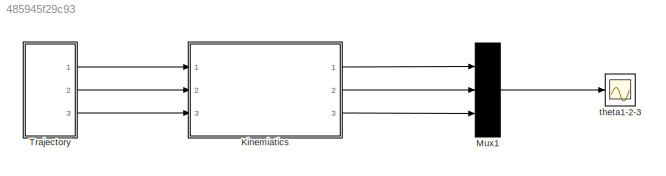
MODEL slx_485945f29c93
KIND model
CONFIG AbsTol = auto
CONFIG EnableMultiTasking = off
CONFIG FixedStep = auto
CONFIG MaxStep = auto
CONFIG MinStep = auto
CONFIG RelTol = 1e-3
CONFIG SampleTimeConstraint = Unconstrained
CONFIG SolverName = VariableStepAuto
CONFIG StartTime = 0.0
CONFIG StopTime = 10.0
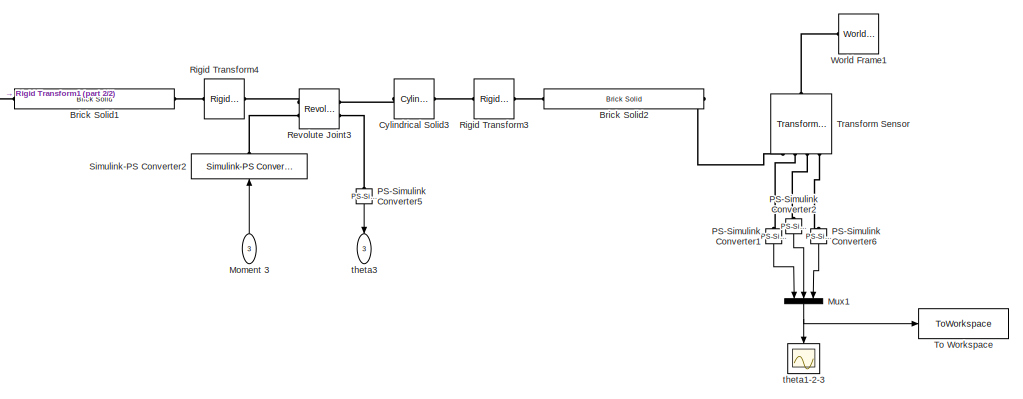
[diagram: Kinemiatics - part 1/2, top right region]
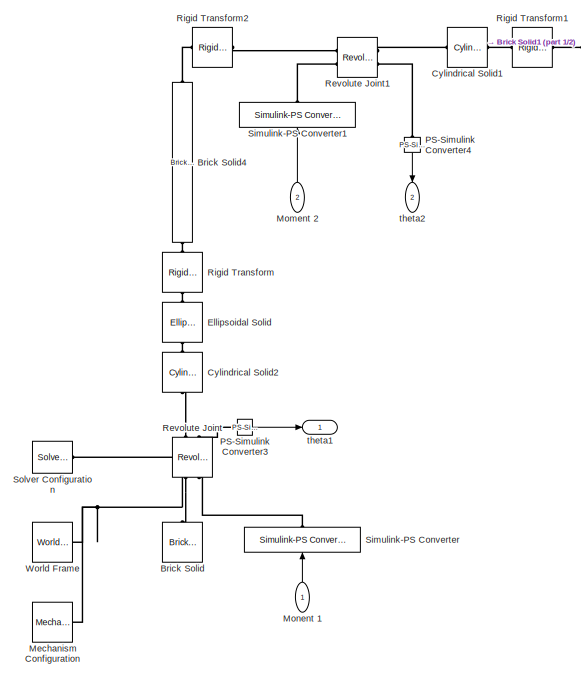
[diagram: Kinemiatics - part 2/2, left side, full height]
BLOCK [SubSystem] Kinemiatics
  Ports = [3, 3]
  RequestExecContextInheritance = off
BLOCK [Reference] Kinemiatics/Brick Solid  REF=sm_lib/Body Elements/Brick Solid
  NameLocation = left
  Ports = [0, 0, 0, 0, 0, 1]
  SourceBlock = sm_lib/Body Elements/Brick Solid
  SourceProductBaseCode = MS
  SourceType = Brick Solid
BLOCK [Reference] Kinemiatics/Brick Solid1  REF=sm_lib/Body Elements/Brick Solid
  NameLocation = top
  Ports = [0, 0, 0, 0, 0, 1, 1]
  SourceBlock = sm_lib/Body Elements/Brick Solid
  SourceProductBaseCode = MS
  SourceType = Brick Solid
BLOCK [Reference] Kinemiatics/Brick Solid2  REF=sm_lib/Body Elements/Brick Solid
  NameLocation = top
  Ports = [0, 0, 0, 0, 0, 1, 1]
  SourceBlock = sm_lib/Body Elements/Brick Solid
  SourceProductBaseCode = MS
  SourceType = Brick Solid
BLOCK [Reference] Kinemiatics/Brick Solid4  REF=sm_lib/Body Elements/Brick Solid
  NameLocation = right
  Ports = [0, 0, 0, 0, 0, 1, 1]
  SourceBlock = sm_lib/Body Elements/Brick Solid
  SourceProductBaseCode = MS
  SourceType = Brick Solid
BLOCK [Reference] Kinemiatics/Cylindrical Solid1  REF=sm_lib/Body Elements/Cylindrical Solid
  Ports = [0, 0, 0, 0, 0, 1, 1]
  SourceBlock = sm_lib/Body Elements/Cylindrical Solid
  SourceProductBaseCode = MS
  SourceType = Cylindrical Solid
BLOCK [Reference] Kinemiatics/Cylindrical Solid2  REF=sm_lib/Body Elements/Cylindrical Solid
  NameLocation = right
  Ports = [0, 0, 0, 0, 0, 1, 1]
  SourceBlock = sm_lib/Body Elements/Cylindrical Solid
  SourceProductBaseCode = MS
  SourceType = Cylindrical Solid
BLOCK [Reference] Kinemiatics/Cylindrical Solid3  REF=sm_lib/Body Elements/Cylindrical Solid
  NameLocation = top
  Ports = [0, 0, 0, 0, 0, 1, 1]
  SourceBlock = sm_lib/Body Elements/Cylindrical Solid
  SourceProductBaseCode = MS
  SourceType = Cylindrical Solid
BLOCK [Reference] Kinemiatics/Ellipsoidal Solid  REF=sm_lib/Body Elements/Ellipsoidal Solid
  NameLocation = right
  Ports = [0, 0, 0, 0, 0, 1, 1]
  SourceBlock = sm_lib/Body Elements/Ellipsoidal Solid
  SourceProductBaseCode = MS
  SourceType = Ellipsoidal Solid
BLOCK [Reference] Kinemiatics/Mechanism Configuration  REF=sm_lib/Utilities/Mechanism
Configuration
  Ports = [0, 0, 0, 0, 0, 0, 1]
  SourceBlock = sm_lib/Utilities/Mechanism\nConfiguration
  SourceProductBaseCode = MS
  SourceType = Mechanism\nConfiguration
BLOCK [Inport] Kinemiatics/Moment 2
  NameLocation = right
  Port = 2
BLOCK [Inport] Kinemiatics/Moment 3
  NameLocation = right
  Port = 3
BLOCK [Inport] Kinemiatics/Monent 1
  NameLocation = right
BLOCK [Mux] Kinemiatics/Mux1
  DisplayOption = bar
  Inputs = 3
  NameLocation = left
  Ports = [3, 1]
BLOCK [Reference] Kinemiatics/PS-Simulink Converter1  REF=nesl_utility/PS-Simulink
Converter
  NameLocation = left
  Ports = [0, 1, 0, 0, 0, 1]
  SourceBlock = nesl_utility/PS-Simulink\nConverter
  SourceProductBaseCode = PW,SS
  SourceType = PS-Simulink\nConverter
BLOCK [Reference] Kinemiatics/PS-Simulink Converter2  REF=nesl_utility/PS-Simulink
Converter
  NameLocation = left
  Ports = [0, 1, 0, 0, 0, 1]
  SourceBlock = nesl_utility/PS-Simulink\nConverter
  SourceProductBaseCode = PW,SS
  SourceType = PS-Simulink\nConverter
BLOCK [Reference] Kinemiatics/PS-Simulink Converter3  REF=nesl_utility/PS-Simulink
Converter
  Ports = [0, 1, 0, 0, 0, 1]
  SourceBlock = nesl_utility/PS-Simulink\nConverter
  SourceProductBaseCode = PW,SS
  SourceType = PS-Simulink\nConverter
BLOCK [Reference] Kinemiatics/PS-Simulink Converter4  REF=nesl_utility/PS-Simulink
Converter
  NameLocation = left
  Ports = [0, 1, 0, 0, 0, 1]
  SourceBlock = nesl_utility/PS-Simulink\nConverter
  SourceProductBaseCode = PW,SS
  SourceType = PS-Simulink\nConverter
BLOCK [Reference] Kinemiatics/PS-Simulink Converter5  REF=nesl_utility/PS-Simulink
Converter
  NameLocation = left
  Ports = [0, 1, 0, 0, 0, 1]
  SourceBlock = nesl_utility/PS-Simulink\nConverter
  SourceProductBaseCode = PW,SS
  SourceType = PS-Simulink\nConverter
BLOCK [Reference] Kinemiatics/PS-Simulink Converter6  REF=nesl_utility/PS-Simulink
Converter
  NameLocation = left
  Ports = [0, 1, 0, 0, 0, 1]
  SourceBlock = nesl_utility/PS-Simulink\nConverter
  SourceProductBaseCode = PW,SS
  SourceType = PS-Simulink\nConverter
BLOCK [Reference] Kinemiatics/Revolute Joint  REF=sm_lib/Joints/Revolute Joint
  NameLocation = right
  Ports = [0, 0, 0, 0, 0, 2, 2]
  SourceBlock = sm_lib/Joints/Revolute Joint
  SourceProductBaseCode = MS
  SourceType = Revolute Joint
BLOCK [Reference] Kinemiatics/Revolute Joint1  REF=sm_lib/Joints/Revolute Joint
  Ports = [0, 0, 0, 0, 0, 2, 2]
  SourceBlock = sm_lib/Joints/Revolute Joint
  SourceProductBaseCode = MS
  SourceType = Revolute Joint
BLOCK [Reference] Kinemiatics/Revolute Joint3  REF=sm_lib/Joints/Revolute Joint
  Ports = [0, 0, 0, 0, 0, 2, 2]
  SourceBlock = sm_lib/Joints/Revolute Joint
  SourceProductBaseCode = MS
  SourceType = Revolute Joint
BLOCK [Reference] Kinemiatics/Rigid Transform  REF=sm_lib/Frames and
Transforms/Rigid
Transform
  NameLocation = right
  Ports = [0, 0, 0, 0, 0, 1, 1]
  SourceBlock = sm_lib/Frames and\nTransforms/Rigid\nTransform
  SourceProductBaseCode = MS
  SourceType = Rigid\nTransform
BLOCK [Reference] Kinemiatics/Rigid Transform1  REF=sm_lib/Frames and
Transforms/Rigid
Transform
  Ports = [0, 0, 0, 0, 0, 1, 1]
  SourceBlock = sm_lib/Frames and\nTransforms/Rigid\nTransform
  SourceProductBaseCode = MS
  SourceType = Rigid\nTransform
BLOCK [Reference] Kinemiatics/Rigid Transform2  REF=sm_lib/Frames and
Transforms/Rigid
Transform
  Ports = [0, 0, 0, 0, 0, 1, 1]
  SourceBlock = sm_lib/Frames and\nTransforms/Rigid\nTransform
  SourceProductBaseCode = MS
  SourceType = Rigid\nTransform
BLOCK [Reference] Kinemiatics/Rigid Transform3  REF=sm_lib/Frames and
Transforms/Rigid
Transform
  Ports = [0, 0, 0, 0, 0, 1, 1]
  SourceBlock = sm_lib/Frames and\nTransforms/Rigid\nTransform
  SourceProductBaseCode = MS
  SourceType = Rigid\nTransform
BLOCK [Reference] Kinemiatics/Rigid Transform4  REF=sm_lib/Frames and
Transforms/Rigid
Transform
  Ports = [0, 0, 0, 0, 0, 1, 1]
  SourceBlock = sm_lib/Frames and\nTransforms/Rigid\nTransform
  SourceProductBaseCode = MS
  SourceType = Rigid\nTransform
BLOCK [Reference] Kinemiatics/Simulink-PS Converter  REF=nesl_utility/Simulink-PS
Converter
  NameLocation = right
  Ports = [1, 0, 0, 0, 0, 0, 1]
  SourceBlock = nesl_utility/Simulink-PS\nConverter
  SourceProductBaseCode = PW,SS
  SourceType = Simulink-PS\nConverter
BLOCK [Reference] Kinemiatics/Simulink-PS Converter1  REF=nesl_utility/Simulink-PS
Converter
  NameLocation = right
  Ports = [1, 0, 0, 0, 0, 0, 1]
  SourceBlock = nesl_utility/Simulink-PS\nConverter
  SourceProductBaseCode = PW,SS
  SourceType = Simulink-PS\nConverter
BLOCK [Reference] Kinemiatics/Simulink-PS Converter2  REF=nesl_utility/Simulink-PS
Converter
  NameLocation = right
  Ports = [1, 0, 0, 0, 0, 0, 1]
  SourceBlock = nesl_utility/Simulink-PS\nConverter
  SourceProductBaseCode = PW,SS
  SourceType = Simulink-PS\nConverter
BLOCK [Reference] Kinemiatics/Solver Configuration  REF=nesl_utility/Solver
Configuration
  Ports = [0, 0, 0, 0, 0, 0, 1]
  SourceBlock = nesl_utility/Solver\nConfiguration
  SourceProductBaseCode = PW,SS
  SourceType = Solver\nConfiguration
BLOCK [ToWorkspace] Kinemiatics/To Workspace
  FixptAsFi = on
  MaxDataPoints = inf
  Ports = [1]
  SampleTime = -1
  SaveFormat = Timeseries
  VariableName = realPosition
BLOCK [Reference] Kinemiatics/Transform Sensor  REF=sm_lib/Frames and
Transforms/Transform
Sensor
  NameLocation = left
  Ports = [0, 0, 0, 0, 0, 1, 4]
  SourceBlock = sm_lib/Frames and\nTransforms/Transform\nSensor
  SourceProductBaseCode = MS
  SourceType = Transform\nSensor
BLOCK [Reference] Kinemiatics/World Frame  REF=sm_lib/Frames and
Transforms/World Frame
  Ports = [0, 0, 0, 0, 0, 0, 1]
  SourceBlock = sm_lib/Frames and\nTransforms/World Frame
  SourceProductBaseCode = MS
  SourceType = World Frame
BLOCK [Reference] Kinemiatics/World Frame1  REF=sm_lib/Frames and
Transforms/World Frame
  NameLocation = top
  Ports = [0, 0, 0, 0, 0, 0, 1]
  SourceBlock = sm_lib/Frames and\nTransforms/World Frame
  SourceProductBaseCode = MS
  SourceType = World Frame
BLOCK [Outport] Kinemiatics/theta1
  VectorParamsAs1DForOutWhenUnconnected = off
BLOCK [Scope] Kinemiatics/theta1-2-3
  Floating = off
  NameLocation = left
  NumInputPorts = 1
  Ports = [1]
  ScopeSpecificationString = Simulink.scopes.TimeScopeBlockCfg('CurrentConfiguration', extmgr.ConfigurationSet(extmgr.Configuration('Core','General UI',true),extmgr.Configuration('Core','Source UI',true),extmgr.Configuration('Sources','WiredSimulink',true,'DataLoggingVariableName','ScopeData1'),extmgr.Configuration('Visuals','Time Domain',true,'SerializedDisplays',{struct('MinYLimReal','-15.00000','MaxYLimReal','35.00000','YL...<+1488ch>
BLOCK [Outport] Kinemiatics/theta2
  NameLocation = left
  Port = 2
  VectorParamsAs1DForOutWhenUnconnected = off
BLOCK [Outport] Kinemiatics/theta3
  NameLocation = left
  Port = 3
  VectorParamsAs1DForOutWhenUnconnected = off
BLOCK [Mux] Mux1
  DisplayOption = bar
  Inputs = 3
  Ports = [3, 1]
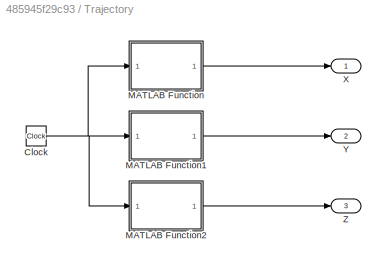
BLOCK [SubSystem] Trajectory
  Ports = [0, 3]
  RequestExecContextInheritance = off
BLOCK [Clock] Trajectory/Clock
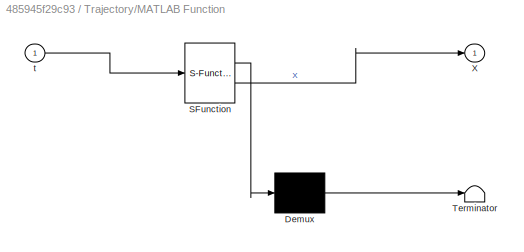
BLOCK [SubSystem] Trajectory/MATLAB Function
  ErrorFcn = Stateflow.Translate.translate
  PermitHierarchicalResolution = ExplicitOnly
  Ports = [1, 1]
  RequestExecContextInheritance = off
  SFBlockType = MATLAB Function
  TreatAsAtomicUnit = on
BLOCK [Demux] Trajectory/MATLAB Function/ Demux 
  Outputs = 1
  Ports = [1, 1]
BLOCK [S-Function] Trajectory/MATLAB Function/ SFunction 
  EnableBusSupport = on
  FunctionName = sf_sfun
  PortCounts = [1 2]
  Ports = [1, 2]
  SFcnIsStateOwnerBlock = off
  SFunctionDeploymentMode = off
  Tag = Stateflow S-Function 3
BLOCK [Terminator] Trajectory/MATLAB Function/ Terminator 
BLOCK [Outport] Trajectory/MATLAB Function/X
  VectorParamsAs1DForOutWhenUnconnected = off
BLOCK [Inport] Trajectory/MATLAB Function/t
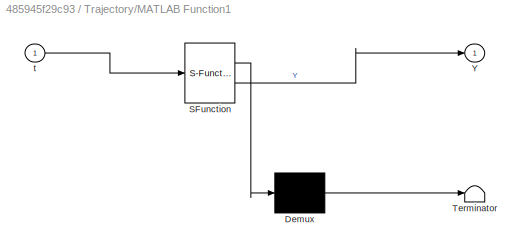
BLOCK [SubSystem] Trajectory/MATLAB Function1
  ErrorFcn = Stateflow.Translate.translate
  PermitHierarchicalResolution = ExplicitOnly
  Ports = [1, 1]
  RequestExecContextInheritance = off
  SFBlockType = MATLAB Function
  TreatAsAtomicUnit = on
BLOCK [Demux] Trajectory/MATLAB Function1/ Demux 
  Outputs = 1
  Ports = [1, 1]
BLOCK [S-Function] Trajectory/MATLAB Function1/ SFunction 
  EnableBusSupport = on
  FunctionName = sf_sfun
  PortCounts = [1 2]
  Ports = [1, 2]
  SFcnIsStateOwnerBlock = off
  SFunctionDeploymentMode = off
  Tag = Stateflow S-Function 4
BLOCK [Terminator] Trajectory/MATLAB Function1/ Terminator 
BLOCK [Outport] Trajectory/MATLAB Function1/Y
  VectorParamsAs1DForOutWhenUnconnected = off
BLOCK [Inport] Trajectory/MATLAB Function1/t
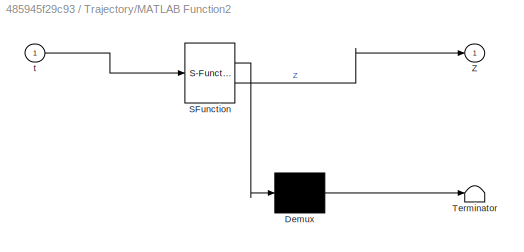
BLOCK [SubSystem] Trajectory/MATLAB Function2
  ErrorFcn = Stateflow.Translate.translate
  PermitHierarchicalResolution = ExplicitOnly
  Ports = [1, 1]
  RequestExecContextInheritance = off
  SFBlockType = MATLAB Function
  TreatAsAtomicUnit = on
BLOCK [Demux] Trajectory/MATLAB Function2/ Demux 
  Outputs = 1
  Ports = [1, 1]
BLOCK [S-Function] Trajectory/MATLAB Function2/ SFunction 
  EnableBusSupport = on
  FunctionName = sf_sfun
  PortCounts = [1 2]
  Ports = [1, 2]
  SFcnIsStateOwnerBlock = off
  SFunctionDeploymentMode = off
  Tag = Stateflow S-Function 5
BLOCK [Terminator] Trajectory/MATLAB Function2/ Terminator 
BLOCK [Outport] Trajectory/MATLAB Function2/Z
  VectorParamsAs1DForOutWhenUnconnected = off
BLOCK [Inport] Trajectory/MATLAB Function2/t
BLOCK [Outport] Trajectory/X
  VectorParamsAs1DForOutWhenUnconnected = off
BLOCK [Outport] Trajectory/Y
  Port = 2
  VectorParamsAs1DForOutWhenUnconnected = off
BLOCK [Outport] Trajectory/Z
  Port = 3
  VectorParamsAs1DForOutWhenUnconnected = off
BLOCK [Scope] theta1-2-3
  Floating = off
  NumInputPorts = 1
  Ports = [1]
  ScopeSpecificationString = Simulink.scopes.TimeScopeBlockCfg('CurrentConfiguration', extmgr.ConfigurationSet(extmgr.Configuration('Core','General UI',true),extmgr.Configuration('Core','Source UI',true),extmgr.Configuration('Sources','WiredSimulink',true,'DataLoggingVariableName','ScopeData1'),extmgr.Configuration('Visuals','Time Domain',true,'SerializedDisplays',{struct('MinYLimReal','-0.52067','MaxYLimReal','2.34979','YLab...<+1458ch>
LINE Kinemiatics/Moment 2:1 -> Kinemiatics/Simulink-PS Converter1:1
LINE Kinemiatics/Moment 3:1 -> Kinemiatics/Simulink-PS Converter2:1
LINE Kinemiatics/Monent 1:1 -> Kinemiatics/Simulink-PS Converter:1
NET Kinemiatics/Mux1:1 -> Kinemiatics/To Workspace:1, Kinemiatics/theta1-2-3:1
LINE Kinemiatics/PS-Simulink Converter1:1 -> Kinemiatics/Mux1:1
LINE Kinemiatics/PS-Simulink Converter2:1 -> Kinemiatics/Mux1:2
LINE Kinemiatics/PS-Simulink Converter3:1 -> Kinemiatics/theta1:1
LINE Kinemiatics/PS-Simulink Converter4:1 -> Kinemiatics/theta2:1
LINE Kinemiatics/PS-Simulink Converter5:1 -> Kinemiatics/theta3:1
LINE Kinemiatics/PS-Simulink Converter6:1 -> Kinemiatics/Mux1:3
LINE Kinemiatics:1 -> Mux1:1
LINE Kinemiatics:2 -> Mux1:2
LINE Kinemiatics:3 -> Mux1:3
LINE Mux1:1 -> theta1-2-3:1
NET Trajectory/Clock:1 -> Trajectory/MATLAB Function1:1, Trajectory/MATLAB Function2:1, Trajectory/MATLAB Function:1
LINE Trajectory/MATLAB Function1:1 -> Trajectory/Y:1
LINE Trajectory/MATLAB Function2:1 -> Trajectory/Z:1
LINE Trajectory/MATLAB Function:1 -> Trajectory/X:1
LINE Trajectory:1 -> Kinemiatics:1
LINE Trajectory:2 -> Kinemiatics:2
LINE Trajectory:3 -> Kinemiatics:3
PLINE Kinemiatics/Brick Solid1:LConn1 -- Kinemiatics/Rigid Transform1:RConn1
PLINE Kinemiatics/Brick Solid1:RConn1 -- Kinemiatics/Rigid Transform4:LConn1
PLINE Kinemiatics/Brick Solid2:LConn1 -- Kinemiatics/Rigid Transform3:RConn1
PLINE Kinemiatics/Brick Solid2:RConn1 -- Kinemiatics/Transform Sensor:RConn1
PLINE Kinemiatics/Brick Solid4:LConn1 -- Kinemiatics/Rigid Transform:RConn1
PLINE Kinemiatics/Brick Solid4:RConn1 -- Kinemiatics/Rigid Transform2:LConn1
PNET net1: Kinemiatics/Brick Solid:LConn1 -- Kinemiatics/Mechanism Configuration:RConn1 -- Kinemiatics/Revolute Joint:LConn1 -- Kinemiatics/Solver Configuration:RConn1 -- Kinemiatics/World Frame:RConn1
PLINE Kinemiatics/Cylindrical Solid1:LConn1 -- Kinemiatics/Revolute Joint1:RConn1
PLINE Kinemiatics/Cylindrical Solid1:RConn1 -- Kinemiatics/Rigid Transform1:LConn1
PLINE Kinemiatics/Cylindrical Solid2:LConn1 -- Kinemiatics/Revolute Joint:RConn1
PLINE Kinemiatics/Cylindrical Solid2:RConn1 -- Kinemiatics/Ellipsoidal Solid:LConn1
PLINE Kinemiatics/Cylindrical Solid3:LConn1 -- Kinemiatics/Rigid Transform3:LConn1
PLINE Kinemiatics/Cylindrical Solid3:RConn1 -- Kinemiatics/Revolute Joint3:RConn1
PLINE Kinemiatics/Ellipsoidal Solid:RConn1 -- Kinemiatics/Rigid Transform:LConn1
PLINE Kinemiatics/PS-Simulink Converter1:LConn1 -- Kinemiatics/Transform Sensor:RConn2
PLINE Kinemiatics/PS-Simulink Converter2:LConn1 -- Kinemiatics/Transform Sensor:RConn3
PLINE Kinemiatics/PS-Simulink Converter3:LConn1 -- Kinemiatics/Revolute Joint:RConn2
PLINE Kinemiatics/PS-Simulink Converter4:LConn1 -- Kinemiatics/Revolute Joint1:RConn2
PLINE Kinemiatics/PS-Simulink Converter5:LConn1 -- Kinemiatics/Revolute Joint3:RConn2
PLINE Kinemiatics/PS-Simulink Converter6:LConn1 -- Kinemiatics/Transform Sensor:RConn4
PLINE Kinemiatics/Revolute Joint1:LConn1 -- Kinemiatics/Rigid Transform2:RConn1
PLINE Kinemiatics/Revolute Joint1:LConn2 -- Kinemiatics/Simulink-PS Converter1:RConn1
PLINE Kinemiatics/Revolute Joint3:LConn1 -- Kinemiatics/Rigid Transform4:RConn1
PLINE Kinemiatics/Revolute Joint3:LConn2 -- Kinemiatics/Simulink-PS Converter2:RConn1
PLINE Kinemiatics/Revolute Joint:LConn2 -- Kinemiatics/Simulink-PS Converter:RConn1
PLINE Kinemiatics/Transform Sensor:LConn1 -- Kinemiatics/World Frame1:RConn1
note: NET lines group one-source signal fan-out (src -> all destinations, sorted); 1:1 wires keep LINE; PNET lines group multi-terminal physical nets as a canonical sorted terminal list (undirected conserving connections); 2-terminal nets keep the pairwise PLINE form
CHART Trajectory/MATLAB Function1 states=1 transitions=1
  STATE_LABEL 'eML_blk_kernel()'
  STATE_LABEL 'SCRIPT:\nfunction Y = fcn(t)\n%#codegen\n\nY = 5;'
CHART Trajectory/MATLAB Function2 states=1 transitions=1
  STATE_LABEL 'eML_blk_kernel()'
  STATE_LABEL 'SCRIPT:\nfunction Z = fcn(t)\n%#codegen\n\nZ = 5;'
CHART Trajectory/MATLAB Function states=1 transitions=1
  STATE_LABEL 'eML_blk_kernel()'
  STATE_LABEL 'SCRIPT:\nfunction X = fcn(t)\n%#codegen\n\nX = 5;'
CHART  states=0 transitions=0
CHART  states=0 transitions=0
CHART  states=0 transitions=0
